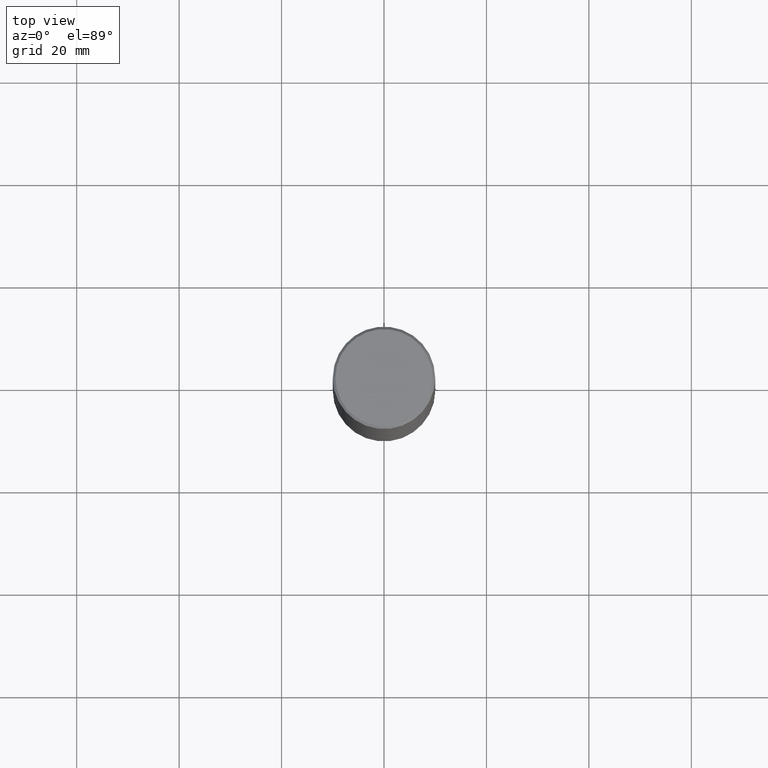
[diagram: clean part render]
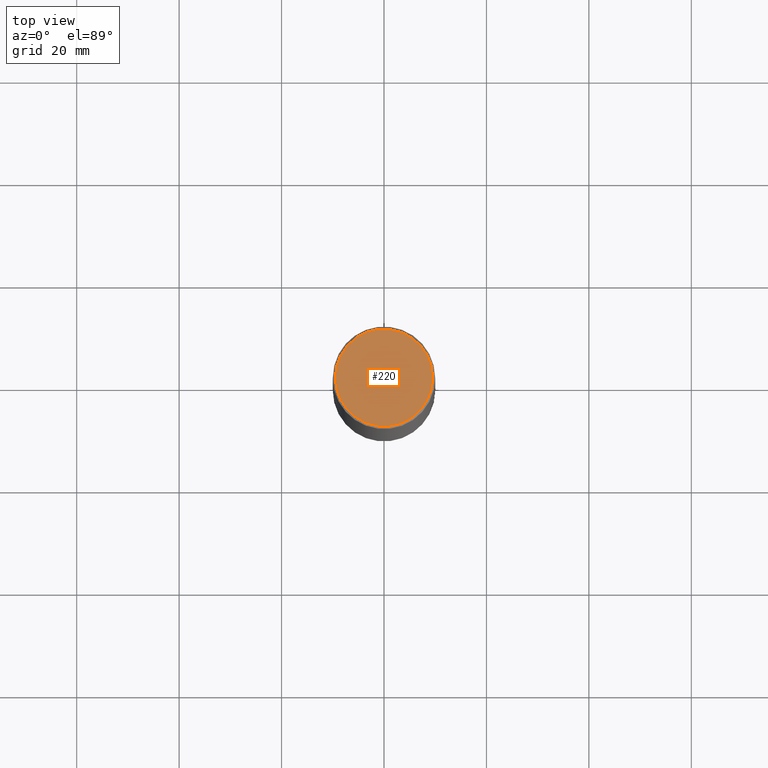
[diagram: same view with one face highlighted and labeled with its STEP entity id]
A machine part, top view. The second image highlights one B-rep face of the part: STEP entity #220.
In plain terms, the highlighted planar face has unit normal (0, -0, -1).
Its self-contained STEP definition (entity closure, byte-faithful):
#16 = AXIS2_PLACEMENT_3D ( 'NONE', #393, #299, #77 ) ;
#52 = VERTEX_POINT ( 'NONE', #284 ) ;
#77 = DIRECTION ( 'NONE',  ( -1.000000000000000000, 6.982962677686265922E-15, -4.876176775795935793E-29 ) ) ;
#102 = PLANE ( 'NONE',  #16 ) ;
#106 = DIRECTION ( 'NONE',  ( 1.000000000000000000, -6.982962677686266711E-15, 4.877734241229871763E-29 ) ) ;
#107 = DIRECTION ( 'NONE',  ( -2.445468806185136597E-29, 3.491481338843145583E-15, 1.000000000000000000 ) ) ;
#110 = ORIENTED_EDGE ( 'NONE', *, *, #324, .T. ) ;
#113 = ORIENTED_EDGE ( 'NONE', *, *, #342, .T. ) ;
#137 = AXIS2_PLACEMENT_3D ( 'NONE', #326, #395, #106 ) ;
#220 = ADVANCED_FACE ( 'NONE', ( #227 ), #102, .F. ) ;
#227 = FACE_OUTER_BOUND ( 'NONE', #302, .T. ) ;
#230 = CARTESIAN_POINT ( 'NONE',  ( -0.3737000000000003097, 2.644447966039789847E-15, -2.219626494852397645E-16 ) ) ;
#259 = VERTEX_POINT ( 'NONE', #230 ) ;
#284 = CARTESIAN_POINT ( 'NONE',  ( 0.3737000000000003097, -2.667287895133369937E-15, -2.219626494852029345E-16 ) ) ;
#299 = DIRECTION ( 'NONE',  ( 2.438088387897960049E-29, -3.491481338843145188E-15, -1.000000000000000000 ) ) ;
#301 = CIRCLE ( 'NONE', #321, 0.3737000000000003097 ) ;
#302 = EDGE_LOOP ( 'NONE', ( #110, #113 ) ) ;
#319 = CIRCLE ( 'NONE', #137, 0.3737000000000003097 ) ;
#321 = AXIS2_PLACEMENT_3D ( 'NONE', #398, #107, #361 ) ;
#324 = EDGE_CURVE ( 'NONE', #259, #52, #319, .T. ) ;
#326 = CARTESIAN_POINT ( 'NONE',  ( 5.428027354543142984E-45, -7.749784485978325769E-31, -2.219626494852213988E-16 ) ) ;
#342 = EDGE_CURVE ( 'NONE', #52, #259, #301, .T. ) ;
#361 = DIRECTION ( 'NONE',  ( 1.000000000000000000, -6.982962677686266711E-15, 4.877734241229871763E-29 ) ) ;
#393 = CARTESIAN_POINT ( 'NONE',  ( 2.609533152651359776E-15, 0.3737000000000003097, -1.415747901068295320E-15 ) ) ;
#395 = DIRECTION ( 'NONE',  ( -2.445468806185136597E-29, 3.491481338843145583E-15, 1.000000000000000000 ) ) ;
#398 = CARTESIAN_POINT ( 'NONE',  ( 5.428027354543142984E-45, -7.749784485978325769E-31, -2.219626494852213988E-16 ) ) ;